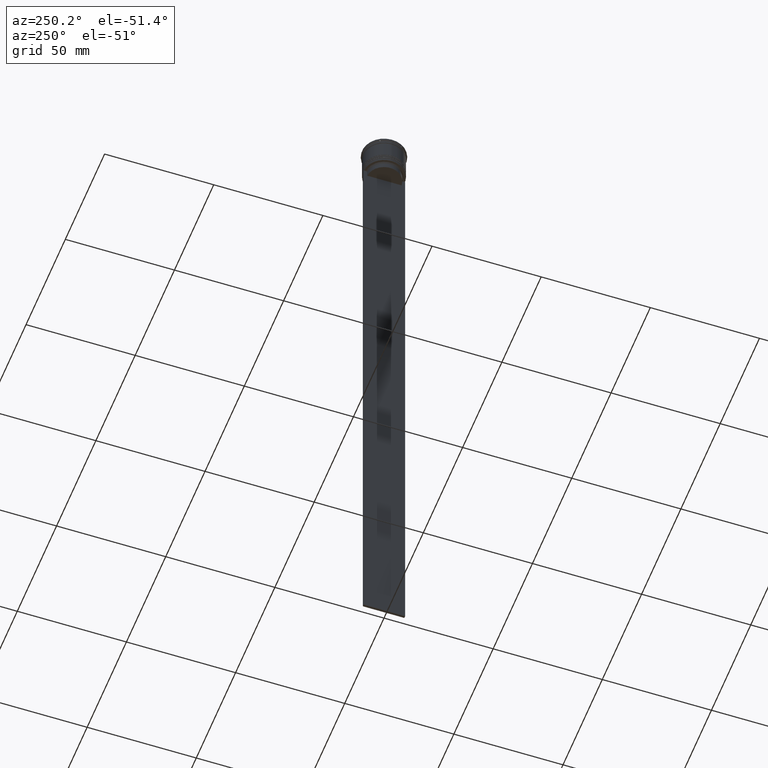
[diagram: clean part render]
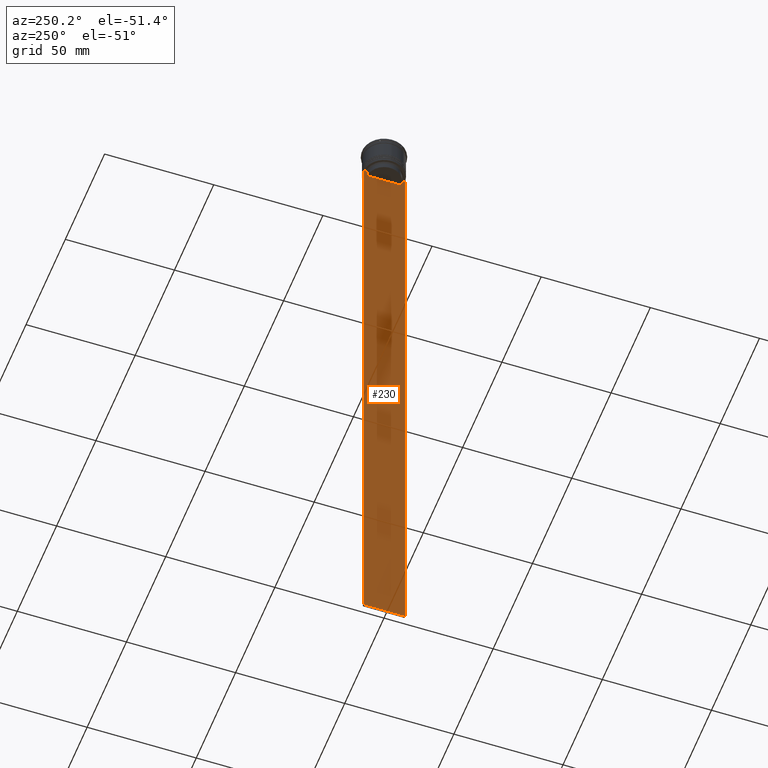
[diagram: same view with one face highlighted and labeled with its STEP entity id]
A machine part, auxiliary view. The second image highlights one B-rep face of the part: STEP entity #230.
In plain terms, the highlighted planar face has unit normal (-1, 0, 0).
Its self-contained STEP definition (entity closure, byte-faithful):
#23 = VECTOR ( 'NONE', #1694, 1000.000000000000000 ) ;
#28 = FACE_OUTER_BOUND ( 'NONE', #608, .T. ) ;
#45 = CARTESIAN_POINT ( 'NONE',  ( -0.5000000000000000000, -9.500000000000001776, -14.00000000000000178 ) ) ;
#67 = EDGE_CURVE ( 'NONE', #138, #210, #1409, .T. ) ;
#138 = VERTEX_POINT ( 'NONE', #2242 ) ;
#164 = CARTESIAN_POINT ( 'NONE',  ( -0.5000000000000000000, -9.500000000000001776, -14.00000000000000178 ) ) ;
#205 = ORIENTED_EDGE ( 'NONE', *, *, #1361, .F. ) ;
#210 = VERTEX_POINT ( 'NONE', #833 ) ;
#214 = LINE ( 'NONE', #1243, #1190 ) ;
#229 = DIRECTION ( 'NONE',  ( 0.000000000000000000, 0.000000000000000000, 1.000000000000000000 ) ) ;
#230 = ADVANCED_FACE ( 'NONE', ( #28 ), #1256, .T. ) ;
#237 = DIRECTION ( 'NONE',  ( 0.000000000000000000, 0.000000000000000000, -1.000000000000000000 ) ) ;
#277 = ORIENTED_EDGE ( 'NONE', *, *, #1072, .F. ) ;
#371 = VECTOR ( 'NONE', #983, 1000.000000000000000 ) ;
#386 = EDGE_CURVE ( 'NONE', #2453, #138, #616, .T. ) ;
#417 = VECTOR ( 'NONE', #1472, 1000.000000000000000 ) ;
#441 = LINE ( 'NONE', #45, #23 ) ;
#455 = LINE ( 'NONE', #1282, #2613 ) ;
#483 = CARTESIAN_POINT ( 'NONE',  ( -0.5000000000000000000, 8.051152811434374001, -14.33334332653219079 ) ) ;
#517 = LINE ( 'NONE', #531, #733 ) ;
#531 = CARTESIAN_POINT ( 'NONE',  ( -0.5000000000000000000, -9.500000000000001776, -14.00000000000000178 ) ) ;
#570 = CARTESIAN_POINT ( 'NONE',  ( -0.5000000000000000000, 9.499999999999998224, 5.026297590440445440 ) ) ;
#596 = CARTESIAN_POINT ( 'NONE',  ( -0.5000000000000000000, -9.500000000000001776, -14.00000000000000178 ) ) ;
#608 = EDGE_LOOP ( 'NONE', ( #1835, #2300, #2515, #2104, #1590, #2207, #980, #205, #621, #2115, #277, #925 ) ) ;
#616 = B_SPLINE_CURVE_WITH_KNOTS ( 'NONE', 3,
 ( #2497, #1057, #483, #901 ),
 .UNSPECIFIED., .F., .F.,
 ( 4, 4 ),
 ( 0.01426761478740281447, 0.01497538974438914448 ),
 .UNSPECIFIED. ) ;
#621 = ORIENTED_EDGE ( 'NONE', *, *, #2427, .F. ) ;
#640 = VERTEX_POINT ( 'NONE', #785 ) ;
#733 = VECTOR ( 'NONE', #2627, 1000.000000000000000 ) ;
#785 = CARTESIAN_POINT ( 'NONE',  ( -0.5000000000000000000, -9.386692708297204035, -14.00000000000000178 ) ) ;
#811 = CARTESIAN_POINT ( 'NONE',  ( -0.5000000000000000000, 7.884161337770803080, 0.000000000000000000 ) ) ;
#833 = CARTESIAN_POINT ( 'NONE',  ( -0.5000000000000000000, 7.884161337770803080, -17.00000000000000000 ) ) ;
#843 = CARTESIAN_POINT ( 'NONE',  ( -0.5000000000000000000, 8.385105843100605583, -14.00000000000000178 ) ) ;
#901 = CARTESIAN_POINT ( 'NONE',  ( -0.5000000000000000000, 7.884161337770803080, -14.50000000000000000 ) ) ;
#911 = CARTESIAN_POINT ( 'NONE',  ( -0.5000000000000000000, -9.500000000000001776, -14.00000000000000178 ) ) ;
#913 = EDGE_CURVE ( 'NONE', #2434, #1853, #517, .T. ) ;
#925 = ORIENTED_EDGE ( 'NONE', *, *, #67, .F. ) ;
#980 = ORIENTED_EDGE ( 'NONE', *, *, #1918, .F. ) ;
#983 = DIRECTION ( 'NONE',  ( 0.000000000000000000, -1.000000000000000000, 0.000000000000000000 ) ) ;
#1010 = VECTOR ( 'NONE', #2431, 1000.000000000000000 ) ;
#1051 = DIRECTION ( 'NONE',  ( -1.000000000000000000, 0.000000000000000000, 0.000000000000000000 ) ) ;
#1057 = CARTESIAN_POINT ( 'NONE',  ( -0.5000000000000000000, 8.218133718559618828, -14.16667606394327983 ) ) ;
#1072 = EDGE_CURVE ( 'NONE', #210, #2061, #2467, .T. ) ;
#1107 = B_SPLINE_CURVE_WITH_KNOTS ( 'NONE', 3,
 ( #1815, #2472, #1262, #1248 ),
 .UNSPECIFIED., .F., .F.,
 ( 4, 4 ),
 ( 0.03673372442973153046, 0.03744389749832059688 ),
 .UNSPECIFIED. ) ;
#1113 = CARTESIAN_POINT ( 'NONE',  ( -0.5000000000000000000, -7.884161337770803080, -14.50000000000000000 ) ) ;
#1172 = VERTEX_POINT ( 'NONE', #1633 ) ;
#1190 = VECTOR ( 'NONE', #1265, 1000.000000000000000 ) ;
#1221 = VERTEX_POINT ( 'NONE', #911 ) ;
#1243 = CARTESIAN_POINT ( 'NONE',  ( -0.5000000000000000000, -7.884161337770803080, 0.000000000000000000 ) ) ;
#1248 = CARTESIAN_POINT ( 'NONE',  ( -0.5000000000000000000, -8.385105843100605583, -14.00000000000000178 ) ) ;
#1256 = PLANE ( 'NONE',  #1612 ) ;
#1262 = CARTESIAN_POINT ( 'NONE',  ( -0.5000000000000000000, -8.218133703942523738, -14.16667607853445787 ) ) ;
#1265 = DIRECTION ( 'NONE',  ( -0.000000000000000000, -0.000000000000000000, 1.000000000000000000 ) ) ;
#1279 = CARTESIAN_POINT ( 'NONE',  ( -0.5000000000000000000, -9.500000000000001776, -314.0000000000000000 ) ) ;
#1282 = CARTESIAN_POINT ( 'NONE',  ( -0.5000000000000000000, -9.500000000000001776, 5.026297590440445440 ) ) ;
#1361 = EDGE_CURVE ( 'NONE', #1511, #640, #1400, .T. ) ;
#1393 = DIRECTION ( 'NONE',  ( 0.000000000000000000, -1.000000000000000000, 0.000000000000000000 ) ) ;
#1400 = LINE ( 'NONE', #596, #371 ) ;
#1406 = VECTOR ( 'NONE', #2635, 1000.000000000000000 ) ;
#1409 = LINE ( 'NONE', #811, #1010 ) ;
#1412 = CARTESIAN_POINT ( 'NONE',  ( -0.5000000000000000000, 9.499999999999994671, -14.00000000000000178 ) ) ;
#1430 = CARTESIAN_POINT ( 'NONE',  ( -0.5000000000000000000, 7.899999999999994138, -17.00000000000000000 ) ) ;
#1452 = EDGE_CURVE ( 'NONE', #1804, #1172, #1817, .T. ) ;
#1457 = CARTESIAN_POINT ( 'NONE',  ( -0.5000000000000000000, -7.884161337770803080, -17.00000000000000000 ) ) ;
#1472 = DIRECTION ( 'NONE',  ( 0.000000000000000000, -1.000000000000000000, 0.000000000000000000 ) ) ;
#1511 = VERTEX_POINT ( 'NONE', #1686 ) ;
#1590 = ORIENTED_EDGE ( 'NONE', *, *, #1452, .F. ) ;
#1612 = AXIS2_PLACEMENT_3D ( 'NONE', #2079, #1051, #229 ) ;
#1633 = CARTESIAN_POINT ( 'NONE',  ( -0.5000000000000000000, 9.499999999999998224, -314.0000000000000000 ) ) ;
#1686 = CARTESIAN_POINT ( 'NONE',  ( -0.5000000000000000000, -8.385105843100605583, -14.00000000000000178 ) ) ;
#1694 = DIRECTION ( 'NONE',  ( 0.000000000000000000, -1.000000000000000000, 0.000000000000000000 ) ) ;
#1804 = VERTEX_POINT ( 'NONE', #1279 ) ;
#1815 = CARTESIAN_POINT ( 'NONE',  ( -0.5000000000000000000, -7.884161337770803080, -14.50000000000000000 ) ) ;
#1817 = LINE ( 'NONE', #2601, #2090 ) ;
#1835 = ORIENTED_EDGE ( 'NONE', *, *, #386, .F. ) ;
#1853 = VERTEX_POINT ( 'NONE', #2286 ) ;
#1860 = EDGE_CURVE ( 'NONE', #1853, #2453, #441, .T. ) ;
#1918 = EDGE_CURVE ( 'NONE', #640, #1221, #2418, .T. ) ;
#1999 = LINE ( 'NONE', #570, #1406 ) ;
#2000 = EDGE_CURVE ( 'NONE', #2434, #1172, #1999, .T. ) ;
#2061 = VERTEX_POINT ( 'NONE', #1457 ) ;
#2079 = CARTESIAN_POINT ( 'NONE',  ( -0.5000000000000000000, -9.500000000000001776, 5.026297590440445440 ) ) ;
#2090 = VECTOR ( 'NONE', #2634, 1000.000000000000000 ) ;
#2104 = ORIENTED_EDGE ( 'NONE', *, *, #2000, .T. ) ;
#2113 = EDGE_CURVE ( 'NONE', #2061, #2251, #214, .T. ) ;
#2115 = ORIENTED_EDGE ( 'NONE', *, *, #2113, .F. ) ;
#2143 = VECTOR ( 'NONE', #1393, 1000.000000000000000 ) ;
#2207 = ORIENTED_EDGE ( 'NONE', *, *, #2648, .F. ) ;
#2242 = CARTESIAN_POINT ( 'NONE',  ( -0.5000000000000000000, 7.884161337770803080, -14.50000000000000000 ) ) ;
#2251 = VERTEX_POINT ( 'NONE', #1113 ) ;
#2286 = CARTESIAN_POINT ( 'NONE',  ( -0.5000000000000000000, 9.386692708297204035, -14.00000000000000178 ) ) ;
#2300 = ORIENTED_EDGE ( 'NONE', *, *, #1860, .F. ) ;
#2418 = LINE ( 'NONE', #164, #2143 ) ;
#2427 = EDGE_CURVE ( 'NONE', #2251, #1511, #1107, .T. ) ;
#2431 = DIRECTION ( 'NONE',  ( 0.000000000000000000, 0.000000000000000000, -1.000000000000000000 ) ) ;
#2434 = VERTEX_POINT ( 'NONE', #1412 ) ;
#2453 = VERTEX_POINT ( 'NONE', #843 ) ;
#2467 = LINE ( 'NONE', #1430, #417 ) ;
#2472 = CARTESIAN_POINT ( 'NONE',  ( -0.5000000000000000000, -8.051152795888546265, -14.33334334204685057 ) ) ;
#2497 = CARTESIAN_POINT ( 'NONE',  ( -0.5000000000000000000, 8.385105843100605583, -14.00000000000000178 ) ) ;
#2515 = ORIENTED_EDGE ( 'NONE', *, *, #913, .F. ) ;
#2601 = CARTESIAN_POINT ( 'NONE',  ( -0.5000000000000000000, -9.500000000000001776, -314.0000000000000000 ) ) ;
#2613 = VECTOR ( 'NONE', #237, 1000.000000000000000 ) ;
#2627 = DIRECTION ( 'NONE',  ( 0.000000000000000000, -1.000000000000000000, 0.000000000000000000 ) ) ;
#2634 = DIRECTION ( 'NONE',  ( 0.000000000000000000, 1.000000000000000000, 0.000000000000000000 ) ) ;
#2635 = DIRECTION ( 'NONE',  ( 0.000000000000000000, 0.000000000000000000, -1.000000000000000000 ) ) ;
#2648 = EDGE_CURVE ( 'NONE', #1221, #1804, #455, .T. ) ;